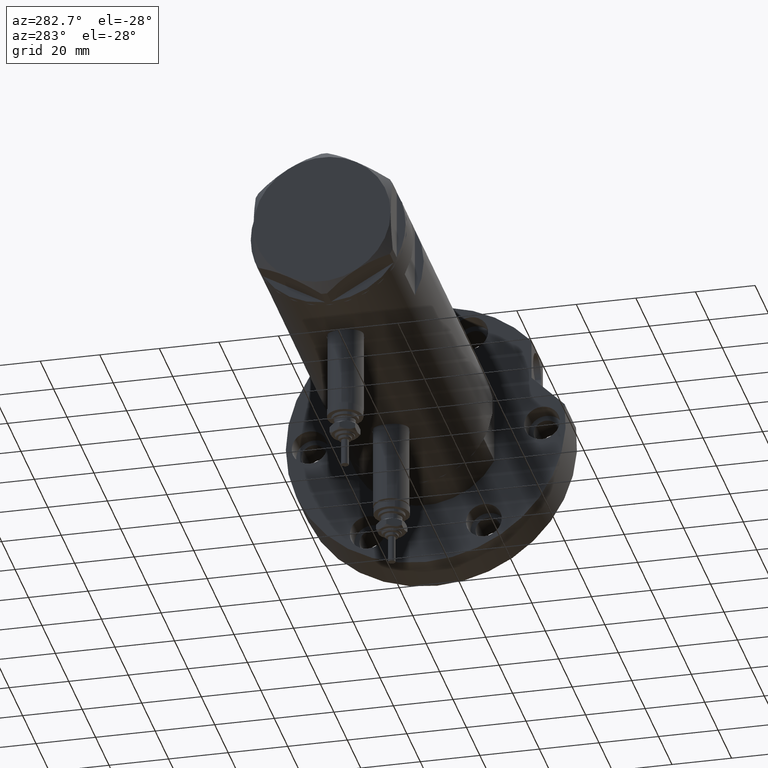
[diagram: clean part render]
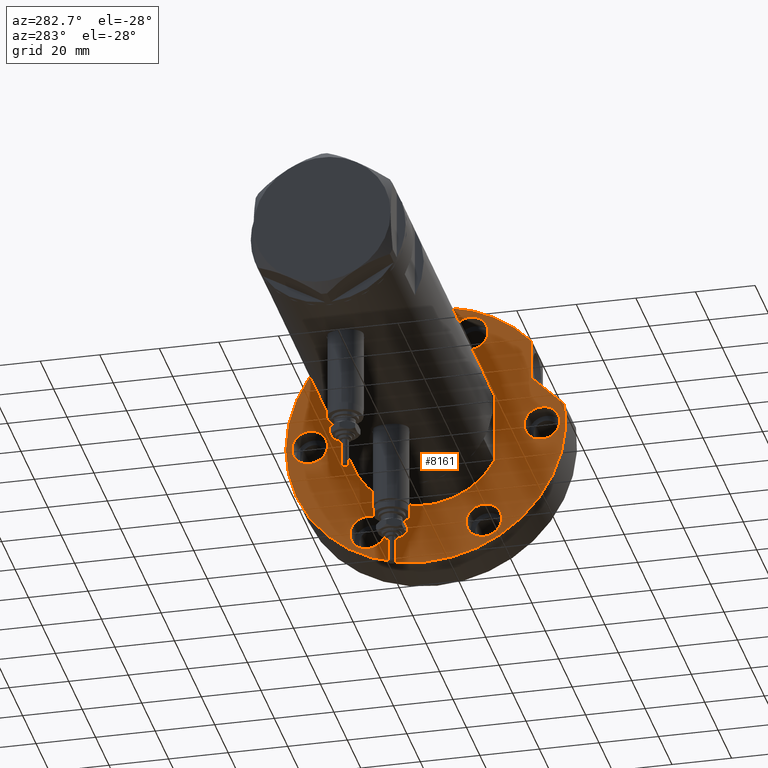
[diagram: same view with one face highlighted and labeled with its STEP entity id]
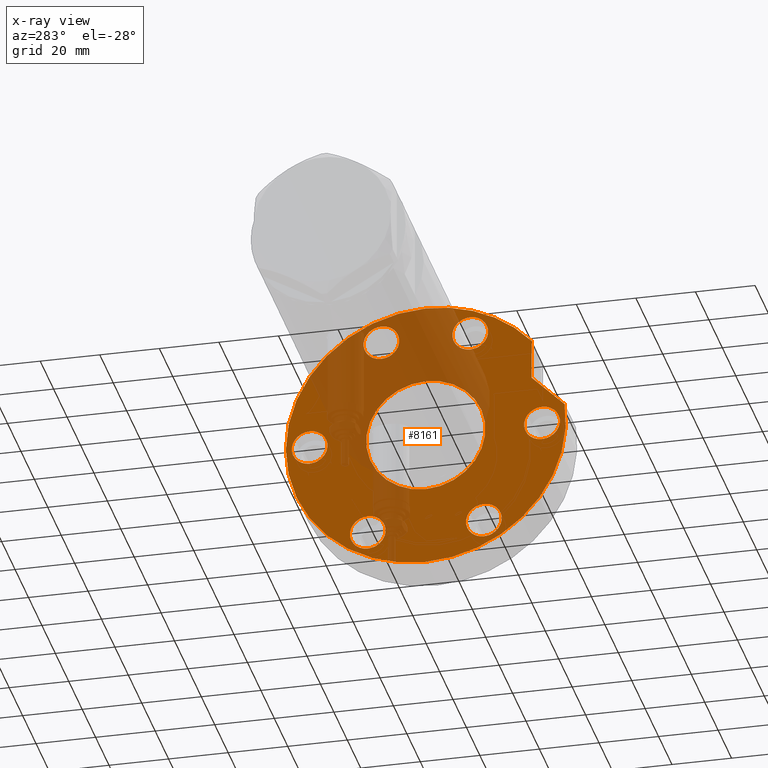
[diagram: x-ray of the same camera — body ghosted, the highlighted face saturated]
A machine part, auxiliary view. The second image highlights one B-rep face of the part: STEP entity #8161.
The next image is the same camera in x-ray: the body ghosted, the highlighted face saturated — about 37% of this face is hidden behind the body in this view.
In plain terms, the highlighted planar face has unit normal (1, 0, -0).
Its self-contained STEP definition (entity closure, byte-faithful):
#7 = EDGE_CURVE ( 'NONE', #2332, #6882, #4795, .T. ) ;
#30 = CARTESIAN_POINT ( 'NONE',  ( 6.000000000000000000, -39.00000000000000000, 0.000000000000000000 ) ) ;
#41 = ORIENTED_EDGE ( 'NONE', *, *, #1736, .F. ) ;
#48 = DIRECTION ( 'NONE',  ( 0.000000000000000000, 0.000000000000000000, -1.000000000000000000 ) ) ;
#49 = FACE_BOUND ( 'NONE', #5872, .T. ) ;
#146 = DIRECTION ( 'NONE',  ( 0.000000000000000000, 0.000000000000000000, -1.000000000000000000 ) ) ;
#168 = CARTESIAN_POINT ( 'NONE',  ( -33.77499074759315079, 19.49999999999992539, 0.000000000000000000 ) ) ;
#260 = DIRECTION ( 'NONE',  ( 0.000000000000000000, 0.000000000000000000, 1.000000000000000000 ) ) ;
#316 = VERTEX_POINT ( 'NONE', #8171 ) ;
#322 = DIRECTION ( 'NONE',  ( 0.000000000000000000, 0.000000000000000000, -1.000000000000000000 ) ) ;
#325 = CARTESIAN_POINT ( 'NONE',  ( 42.03130176794011419, 14.92465386223865842, 0.000000000000000000 ) ) ;
#382 = EDGE_LOOP ( 'NONE', ( #2024, #1667 ) ) ;
#396 = VERTEX_POINT ( 'NONE', #999 ) ;
#431 = EDGE_CURVE ( 'NONE', #7231, #3608, #5529, .T. ) ;
#479 = VECTOR ( 'NONE', #7353, 1000.000000000000000 ) ;
#513 = CIRCLE ( 'NONE', #6020, 5.999999999999998224 ) ;
#621 = EDGE_CURVE ( 'NONE', #4720, #6295, #6281, .T. ) ;
#639 = PLANE ( 'NONE',  #3420 ) ;
#755 = CIRCLE ( 'NONE', #3978, 5.999999999999998224 ) ;
#761 = DIRECTION ( 'NONE',  ( -1.000000000000000000, 0.000000000000000000, 0.000000000000000000 ) ) ;
#855 = DIRECTION ( 'NONE',  ( 0.000000000000000000, 0.000000000000000000, -1.000000000000000000 ) ) ;
#909 = AXIS2_PLACEMENT_3D ( 'NONE', #2247, #322, #4308 ) ;
#999 = CARTESIAN_POINT ( 'NONE',  ( -46.99999999999999289, 0.000000000000000000, 0.000000000000000000 ) ) ;
#1016 = EDGE_LOOP ( 'NONE', ( #7305, #4668 ) ) ;
#1162 = CARTESIAN_POINT ( 'NONE',  ( -27.77499074759315434, 19.49999999999992539, 0.000000000000000000 ) ) ;
#1208 = FACE_BOUND ( 'NONE', #8185, .T. ) ;
#1226 = CARTESIAN_POINT ( 'NONE',  ( 20.00000000000000000, 0.000000000000000000, 0.000000000000000000 ) ) ;
#1277 = DIRECTION ( 'NONE',  ( 1.000000000000000000, 0.000000000000000000, 0.000000000000000000 ) ) ;
#1316 = CIRCLE ( 'NONE', #2972, 5.999999999999998224 ) ;
#1338 = CIRCLE ( 'NONE', #2059, 6.000000000000005329 ) ;
#1341 = LINE ( 'NONE', #8014, #479 ) ;
#1344 = CIRCLE ( 'NONE', #7115, 46.99999999999999289 ) ;
#1400 = ORIENTED_EDGE ( 'NONE', *, *, #8368, .F. ) ;
#1468 = ORIENTED_EDGE ( 'NONE', *, *, #1747, .T. ) ;
#1652 = EDGE_LOOP ( 'NONE', ( #1961, #41 ) ) ;
#1667 = ORIENTED_EDGE ( 'NONE', *, *, #7624, .F. ) ;
#1668 = DIRECTION ( 'NONE',  ( 0.000000000000000000, 0.000000000000000000, -1.000000000000000000 ) ) ;
#1736 = EDGE_CURVE ( 'NONE', #2337, #7639, #755, .T. ) ;
#1747 = EDGE_CURVE ( 'NONE', #6295, #3502, #1341, .T. ) ;
#1802 = ORIENTED_EDGE ( 'NONE', *, *, #8306, .F. ) ;
#1825 = ORIENTED_EDGE ( 'NONE', *, *, #7116, .F. ) ;
#1838 = EDGE_CURVE ( 'NONE', #8608, #1888, #1316, .T. ) ;
#1888 = VERTEX_POINT ( 'NONE', #5130 ) ;
#1961 = ORIENTED_EDGE ( 'NONE', *, *, #8247, .F. ) ;
#2024 = ORIENTED_EDGE ( 'NONE', *, *, #2785, .F. ) ;
#2044 = CARTESIAN_POINT ( 'NONE',  ( 0.000000000000000000, 0.000000000000000000, 0.000000000000000000 ) ) ;
#2059 = AXIS2_PLACEMENT_3D ( 'NONE', #5517, #855, #3519 ) ;
#2247 = CARTESIAN_POINT ( 'NONE',  ( 0.000000000000000000, 39.00000000000000000, 0.000000000000000000 ) ) ;
#2297 = CARTESIAN_POINT ( 'NONE',  ( 0.000000000000000000, 39.00000000000000000, 0.000000000000000000 ) ) ;
#2332 = VERTEX_POINT ( 'NONE', #2899 ) ;
#2337 = VERTEX_POINT ( 'NONE', #325 ) ;
#2463 = CARTESIAN_POINT ( 'NONE',  ( 30.83217135699462830, 35.47361286101148892, 0.000000000000000000 ) ) ;
#2553 = CARTESIAN_POINT ( 'NONE',  ( 6.000000000000000888, 39.00000000000000000, 0.000000000000000000 ) ) ;
#2647 = DIRECTION ( 'NONE',  ( 0.000000000000000000, 0.000000000000000000, 1.000000000000000000 ) ) ;
#2711 = CARTESIAN_POINT ( 'NONE',  ( -33.77499074759315079, 19.49999999999992539, 0.000000000000000000 ) ) ;
#2731 = CARTESIAN_POINT ( 'NONE',  ( 0.000000000000000000, 0.000000000000000000, 0.000000000000000000 ) ) ;
#2733 = AXIS2_PLACEMENT_3D ( 'NONE', #2297, #3630, #3943 ) ;
#2741 = AXIS2_PLACEMENT_3D ( 'NONE', #6881, #6287, #3517 ) ;
#2785 = EDGE_CURVE ( 'NONE', #7611, #8101, #5229, .T. ) ;
#2801 = ORIENTED_EDGE ( 'NONE', *, *, #431, .T. ) ;
#2823 = DIRECTION ( 'NONE',  ( -1.000000000000000000, 0.000000000000000000, 0.000000000000000000 ) ) ;
#2899 = CARTESIAN_POINT ( 'NONE',  ( -6.000000000000000000, -39.00000000000000000, 0.000000000000000000 ) ) ;
#2972 = AXIS2_PLACEMENT_3D ( 'NONE', #168, #6243, #2823 ) ;
#3031 = DIRECTION ( 'NONE',  ( 0.7071067811865511255, -0.7071067811865440200, -0.000000000000000000 ) ) ;
#3056 = VERTEX_POINT ( 'NONE', #7939 ) ;
#3087 = CARTESIAN_POINT ( 'NONE',  ( 17.22217135699460755, 35.47361286101150313, 0.000000000000000000 ) ) ;
#3162 = AXIS2_PLACEMENT_3D ( 'NONE', #2711, #6132, #5319 ) ;
#3212 = FACE_BOUND ( 'NONE', #6234, .T. ) ;
#3304 = FACE_BOUND ( 'NONE', #1652, .T. ) ;
#3352 = DIRECTION ( 'NONE',  ( -1.000000000000000000, 0.000000000000000000, 0.000000000000000000 ) ) ;
#3420 = AXIS2_PLACEMENT_3D ( 'NONE', #5372, #6039, #5944 ) ;
#3423 = EDGE_LOOP ( 'NONE', ( #6410, #5487 ) ) ;
#3502 = VERTEX_POINT ( 'NONE', #2463 ) ;
#3514 = VECTOR ( 'NONE', #3031, 999.9999999999998863 ) ;
#3517 = DIRECTION ( 'NONE',  ( -1.000000000000000000, 0.000000000000000000, 0.000000000000000000 ) ) ;
#3519 = DIRECTION ( 'NONE',  ( -1.000000000000000000, 0.000000000000000000, 0.000000000000000000 ) ) ;
#3570 = AXIS2_PLACEMENT_3D ( 'NONE', #7338, #5357, #761 ) ;
#3608 = VERTEX_POINT ( 'NONE', #8533 ) ;
#3630 = DIRECTION ( 'NONE',  ( 0.000000000000000000, 0.000000000000000000, -1.000000000000000000 ) ) ;
#3690 = AXIS2_PLACEMENT_3D ( 'NONE', #2044, #5354, #7245 ) ;
#3724 = EDGE_CURVE ( 'NONE', #316, #4163, #8475, .T. ) ;
#3906 = CARTESIAN_POINT ( 'NONE',  ( 36.03130176794011419, -14.92465386223865842, 0.000000000000000000 ) ) ;
#3934 = AXIS2_PLACEMENT_3D ( 'NONE', #7496, #146, #8070 ) ;
#3943 = DIRECTION ( 'NONE',  ( -1.000000000000000000, 0.000000000000000000, 0.000000000000000000 ) ) ;
#3974 = EDGE_LOOP ( 'NONE', ( #5391, #1468, #7212, #4346, #1400 ) ) ;
#3978 = AXIS2_PLACEMENT_3D ( 'NONE', #4027, #48, #5990 ) ;
#4027 = CARTESIAN_POINT ( 'NONE',  ( 36.03130176794011419, 14.92465386223865842, 0.000000000000000000 ) ) ;
#4163 = VERTEX_POINT ( 'NONE', #5179 ) ;
#4263 = CARTESIAN_POINT ( 'NONE',  ( 0.000000000000000000, 0.000000000000000000, 0.000000000000000000 ) ) ;
#4308 = DIRECTION ( 'NONE',  ( -1.000000000000000000, 0.000000000000000000, 0.000000000000000000 ) ) ;
#4346 = ORIENTED_EDGE ( 'NONE', *, *, #8675, .F. ) ;
#4555 = FACE_BOUND ( 'NONE', #1016, .T. ) ;
#4668 = ORIENTED_EDGE ( 'NONE', *, *, #1838, .F. ) ;
#4720 = VERTEX_POINT ( 'NONE', #5759 ) ;
#4795 = CIRCLE ( 'NONE', #3934, 6.000000000000000000 ) ;
#4862 = AXIS2_PLACEMENT_3D ( 'NONE', #5284, #260, #6551 ) ;
#5062 = DIRECTION ( 'NONE',  ( 0.000000000000000000, 0.000000000000000000, -1.000000000000000000 ) ) ;
#5072 = DIRECTION ( 'NONE',  ( 0.000000000000000000, 0.000000000000000000, 1.000000000000000000 ) ) ;
#5130 = CARTESIAN_POINT ( 'NONE',  ( -39.77499074759315079, 19.49999999999992539, 0.000000000000000000 ) ) ;
#5158 = CIRCLE ( 'NONE', #5871, 46.99999999999999289 ) ;
#5161 = CIRCLE ( 'NONE', #3162, 5.999999999999998224 ) ;
#5179 = CARTESIAN_POINT ( 'NONE',  ( -27.77499074759301578, -19.50000000000015277, 0.000000000000000000 ) ) ;
#5229 = CIRCLE ( 'NONE', #8192, 5.999999999999998224 ) ;
#5284 = CARTESIAN_POINT ( 'NONE',  ( 0.000000000000000000, 0.000000000000000000, 0.000000000000000000 ) ) ;
#5293 = CIRCLE ( 'NONE', #909, 6.000000000000000888 ) ;
#5319 = DIRECTION ( 'NONE',  ( -1.000000000000000000, 0.000000000000000000, 0.000000000000000000 ) ) ;
#5354 = DIRECTION ( 'NONE',  ( 0.000000000000000000, 0.000000000000000000, 1.000000000000000000 ) ) ;
#5357 = DIRECTION ( 'NONE',  ( 0.000000000000000000, 0.000000000000000000, -1.000000000000000000 ) ) ;
#5372 = CARTESIAN_POINT ( 'NONE',  ( 0.000000000000000000, 0.000000000000000000, 0.000000000000000000 ) ) ;
#5391 = ORIENTED_EDGE ( 'NONE', *, *, #621, .T. ) ;
#5487 = ORIENTED_EDGE ( 'NONE', *, *, #6552, .F. ) ;
#5517 = CARTESIAN_POINT ( 'NONE',  ( -33.77499074759302289, -19.50000000000015277, 0.000000000000000000 ) ) ;
#5529 = CIRCLE ( 'NONE', #6633, 20.00000000000000000 ) ;
#5586 = CARTESIAN_POINT ( 'NONE',  ( 17.22217135699461110, 35.47361286101150313, 0.000000000000000000 ) ) ;
#5650 = CARTESIAN_POINT ( 'NONE',  ( 36.03130176794011419, -14.92465386223865842, 0.000000000000000000 ) ) ;
#5719 = CIRCLE ( 'NONE', #4862, 46.99999999999999289 ) ;
#5759 = CARTESIAN_POINT ( 'NONE',  ( 6.092310621118299352, 46.60347359688769586, 0.000000000000000000 ) ) ;
#5871 = AXIS2_PLACEMENT_3D ( 'NONE', #7770, #5072, #6399 ) ;
#5872 = EDGE_LOOP ( 'NONE', ( #5976, #1802 ) ) ;
#5944 = DIRECTION ( 'NONE',  ( 1.000000000000000000, 0.000000000000000000, -0.000000000000000000 ) ) ;
#5955 = EDGE_CURVE ( 'NONE', #3608, #7231, #7545, .T. ) ;
#5976 = ORIENTED_EDGE ( 'NONE', *, *, #6259, .F. ) ;
#5990 = DIRECTION ( 'NONE',  ( -1.000000000000000000, 0.000000000000000000, 0.000000000000000000 ) ) ;
#6020 = AXIS2_PLACEMENT_3D ( 'NONE', #3906, #1668, #3352 ) ;
#6039 = DIRECTION ( 'NONE',  ( 0.000000000000000000, 0.000000000000000000, 1.000000000000000000 ) ) ;
#6044 = CARTESIAN_POINT ( 'NONE',  ( -33.77499074759302289, -19.50000000000015277, 0.000000000000000000 ) ) ;
#6132 = DIRECTION ( 'NONE',  ( 0.000000000000000000, 0.000000000000000000, -1.000000000000000000 ) ) ;
#6234 = EDGE_LOOP ( 'NONE', ( #8006, #1825 ) ) ;
#6243 = DIRECTION ( 'NONE',  ( 0.000000000000000000, 0.000000000000000000, -1.000000000000000000 ) ) ;
#6259 = EDGE_CURVE ( 'NONE', #3056, #7282, #6951, .T. ) ;
#6281 = LINE ( 'NONE', #5586, #3514 ) ;
#6287 = DIRECTION ( 'NONE',  ( 0.000000000000000000, 0.000000000000000000, -1.000000000000000000 ) ) ;
#6295 = VERTEX_POINT ( 'NONE', #3087 ) ;
#6339 = VERTEX_POINT ( 'NONE', #7127 ) ;
#6399 = DIRECTION ( 'NONE',  ( 1.000000000000000000, 0.000000000000000000, 0.000000000000000000 ) ) ;
#6407 = CIRCLE ( 'NONE', #2741, 5.999999999999998224 ) ;
#6410 = ORIENTED_EDGE ( 'NONE', *, *, #3724, .F. ) ;
#6551 = DIRECTION ( 'NONE',  ( 1.000000000000000000, 0.000000000000000000, 0.000000000000000000 ) ) ;
#6552 = EDGE_CURVE ( 'NONE', #4163, #316, #1338, .T. ) ;
#6596 = CARTESIAN_POINT ( 'NONE',  ( 42.03130176794011419, -14.92465386223865842, 0.000000000000000000 ) ) ;
#6633 = AXIS2_PLACEMENT_3D ( 'NONE', #4263, #6955, #6657 ) ;
#6657 = DIRECTION ( 'NONE',  ( 1.000000000000000000, 0.000000000000000000, 0.000000000000000000 ) ) ;
#6725 = DIRECTION ( 'NONE',  ( -1.000000000000000000, 0.000000000000000000, 0.000000000000000000 ) ) ;
#6755 = FACE_BOUND ( 'NONE', #3423, .T. ) ;
#6881 = CARTESIAN_POINT ( 'NONE',  ( 36.03130176794011419, 14.92465386223865842, 0.000000000000000000 ) ) ;
#6882 = VERTEX_POINT ( 'NONE', #30 ) ;
#6951 = CIRCLE ( 'NONE', #2733, 6.000000000000000888 ) ;
#6955 = DIRECTION ( 'NONE',  ( 0.000000000000000000, 0.000000000000000000, 1.000000000000000000 ) ) ;
#7061 = CARTESIAN_POINT ( 'NONE',  ( 30.03130176794011774, -14.92465386223865842, 0.000000000000000000 ) ) ;
#7080 = EDGE_CURVE ( 'NONE', #6339, #3502, #1344, .T. ) ;
#7115 = AXIS2_PLACEMENT_3D ( 'NONE', #2731, #2647, #1277 ) ;
#7116 = EDGE_CURVE ( 'NONE', #6882, #2332, #7557, .T. ) ;
#7127 = CARTESIAN_POINT ( 'NONE',  ( 46.99999999999999289, 5.755839955992559063E-15, 0.000000000000000000 ) ) ;
#7212 = ORIENTED_EDGE ( 'NONE', *, *, #7080, .F. ) ;
#7231 = VERTEX_POINT ( 'NONE', #1226 ) ;
#7245 = DIRECTION ( 'NONE',  ( 1.000000000000000000, 0.000000000000000000, 0.000000000000000000 ) ) ;
#7263 = FACE_OUTER_BOUND ( 'NONE', #3974, .T. ) ;
#7282 = VERTEX_POINT ( 'NONE', #2553 ) ;
#7291 = CARTESIAN_POINT ( 'NONE',  ( 30.03130176794011774, 14.92465386223865842, 0.000000000000000000 ) ) ;
#7305 = ORIENTED_EDGE ( 'NONE', *, *, #7638, .F. ) ;
#7338 = CARTESIAN_POINT ( 'NONE',  ( 0.000000000000000000, -39.00000000000000000, 0.000000000000000000 ) ) ;
#7353 = DIRECTION ( 'NONE',  ( 1.000000000000000000, -1.019675812477181606E-15, 0.000000000000000000 ) ) ;
#7361 = DIRECTION ( 'NONE',  ( 0.000000000000000000, 0.000000000000000000, -1.000000000000000000 ) ) ;
#7496 = CARTESIAN_POINT ( 'NONE',  ( 0.000000000000000000, -39.00000000000000000, 0.000000000000000000 ) ) ;
#7545 = CIRCLE ( 'NONE', #3690, 20.00000000000000000 ) ;
#7557 = CIRCLE ( 'NONE', #3570, 6.000000000000000000 ) ;
#7611 = VERTEX_POINT ( 'NONE', #7061 ) ;
#7624 = EDGE_CURVE ( 'NONE', #8101, #7611, #513, .T. ) ;
#7638 = EDGE_CURVE ( 'NONE', #1888, #8608, #5161, .T. ) ;
#7639 = VERTEX_POINT ( 'NONE', #7291 ) ;
#7770 = CARTESIAN_POINT ( 'NONE',  ( 0.000000000000000000, 0.000000000000000000, 0.000000000000000000 ) ) ;
#7939 = CARTESIAN_POINT ( 'NONE',  ( -6.000000000000000888, 39.00000000000000000, 0.000000000000000000 ) ) ;
#8006 = ORIENTED_EDGE ( 'NONE', *, *, #7, .F. ) ;
#8014 = CARTESIAN_POINT ( 'NONE',  ( 17.22217135699461110, 35.47361286101150313, 0.000000000000000000 ) ) ;
#8070 = DIRECTION ( 'NONE',  ( -1.000000000000000000, 0.000000000000000000, 0.000000000000000000 ) ) ;
#8101 = VERTEX_POINT ( 'NONE', #6596 ) ;
#8121 = ORIENTED_EDGE ( 'NONE', *, *, #5955, .T. ) ;
#8161 = ADVANCED_FACE ( 'NONE', ( #49, #3304, #8607, #3212, #6755, #4555, #1208, #7263 ), #639, .F. ) ;
#8171 = CARTESIAN_POINT ( 'NONE',  ( -39.77499074759302289, -19.50000000000015277, 0.000000000000000000 ) ) ;
#8185 = EDGE_LOOP ( 'NONE', ( #2801, #8121 ) ) ;
#8192 = AXIS2_PLACEMENT_3D ( 'NONE', #5650, #5062, #8328 ) ;
#8247 = EDGE_CURVE ( 'NONE', #7639, #2337, #6407, .T. ) ;
#8306 = EDGE_CURVE ( 'NONE', #7282, #3056, #5293, .T. ) ;
#8328 = DIRECTION ( 'NONE',  ( -1.000000000000000000, 0.000000000000000000, 0.000000000000000000 ) ) ;
#8368 = EDGE_CURVE ( 'NONE', #4720, #396, #5719, .T. ) ;
#8475 = CIRCLE ( 'NONE', #8609, 6.000000000000005329 ) ;
#8533 = CARTESIAN_POINT ( 'NONE',  ( -20.00000000000000000, 2.449293598294706513E-15, 0.000000000000000000 ) ) ;
#8607 = FACE_BOUND ( 'NONE', #382, .T. ) ;
#8608 = VERTEX_POINT ( 'NONE', #1162 ) ;
#8609 = AXIS2_PLACEMENT_3D ( 'NONE', #6044, #7361, #6725 ) ;
#8675 = EDGE_CURVE ( 'NONE', #396, #6339, #5158, .T. ) ;